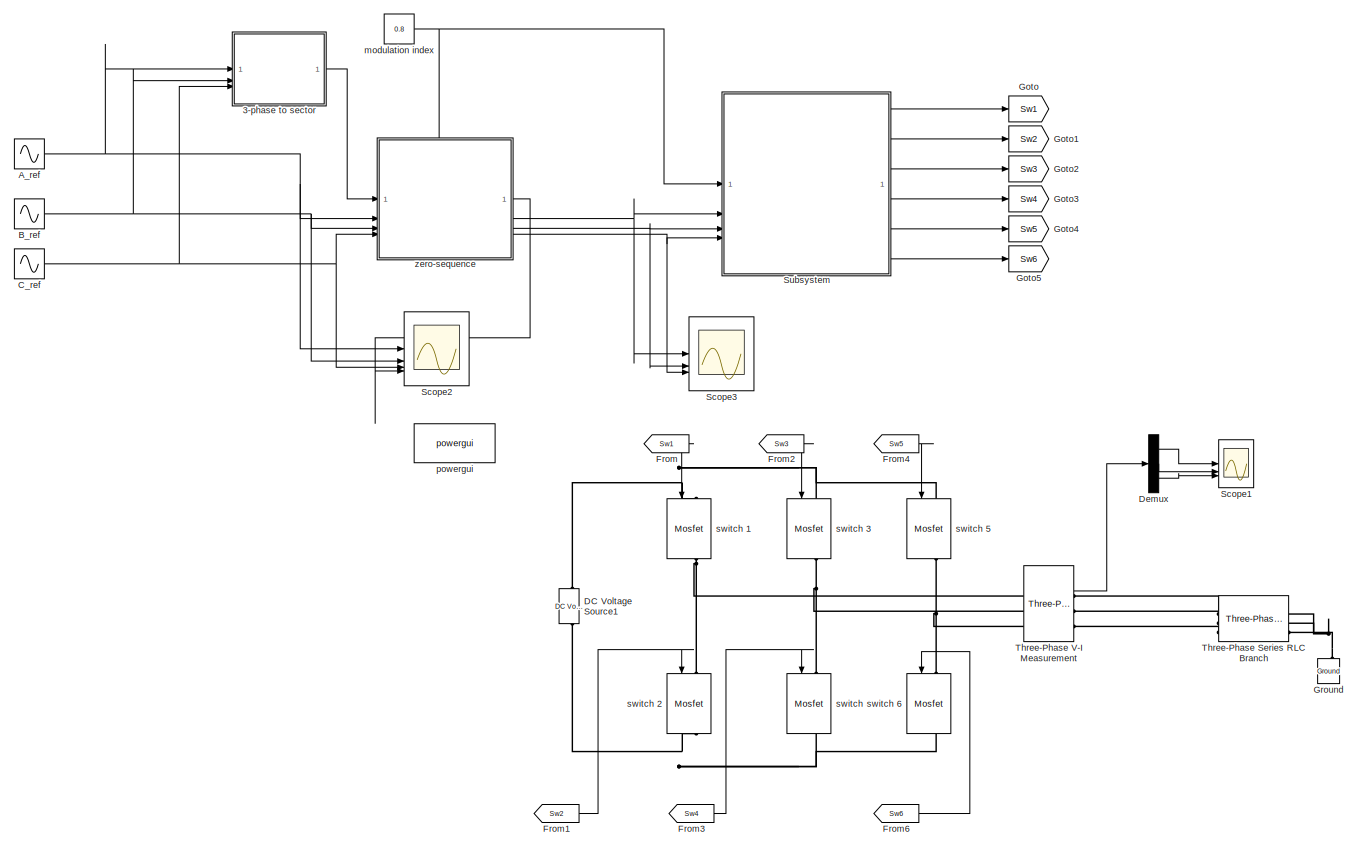
[diagram: root canvas - part 1/1, most of the canvas]
MODEL slx_2ad8d9f9e741
KIND model
CONFIG AbsTol = auto
CONFIG EnableMultiTasking = off
CONFIG FixedStep = auto
CONFIG MaxStep = 0.0001
CONFIG MinStep = auto
CONFIG RelTol = 1e-3
CONFIG SampleTimeConstraint = Unconstrained
CONFIG SolverName = VariableStepAuto
CONFIG StartTime = 0.0
CONFIG StopTime = 0.2
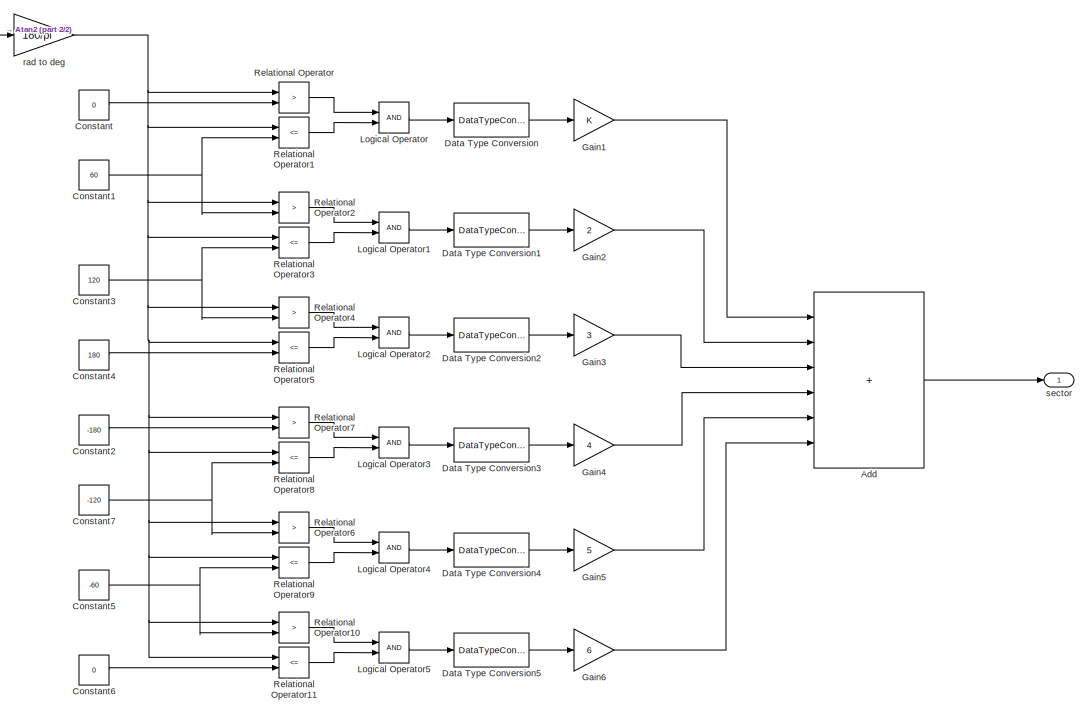
[diagram: 3-phase to sector - part 1/2, right side, full height]
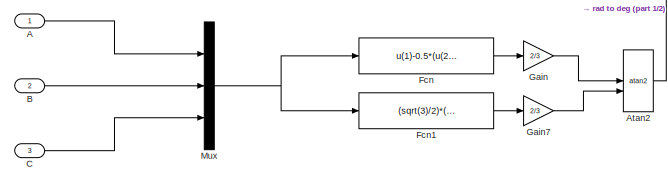
[diagram: 3-phase to sector - part 2/2, middle left region]
BLOCK [SubSystem] 3-phase to sector
BLOCK [Inport] 3-phase to sector/A
BLOCK [Sum] 3-phase to sector/Add
  IconShape = rectangular
  Inputs = ++++++
BLOCK [Trigonometry] 3-phase to sector/Atan2
  Operator = atan2
BLOCK [Inport] 3-phase to sector/B
  Port = 2
BLOCK [Inport] 3-phase to sector/C
  Port = 3
BLOCK [Constant] 3-phase to sector/Constant
  Value = 0
BLOCK [Constant] 3-phase to sector/Constant1
  Value = 60
BLOCK [Constant] 3-phase to sector/Constant2
  Value = -180
BLOCK [Constant] 3-phase to sector/Constant3
  Value = 120
BLOCK [Constant] 3-phase to sector/Constant4
  Value = 180
BLOCK [Constant] 3-phase to sector/Constant5
  Value = -60
BLOCK [Constant] 3-phase to sector/Constant6
  Value = 0
BLOCK [Constant] 3-phase to sector/Constant7
  Value = -120
BLOCK [DataTypeConversion] 3-phase to sector/Data Type Conversion
  RndMeth = Floor
  SaturateOnIntegerOverflow = off
BLOCK [DataTypeConversion] 3-phase to sector/Data Type Conversion1
  RndMeth = Floor
  SaturateOnIntegerOverflow = off
BLOCK [DataTypeConversion] 3-phase to sector/Data Type Conversion2
  RndMeth = Floor
  SaturateOnIntegerOverflow = off
BLOCK [DataTypeConversion] 3-phase to sector/Data Type Conversion3
  RndMeth = Floor
  SaturateOnIntegerOverflow = off
BLOCK [DataTypeConversion] 3-phase to sector/Data Type Conversion4
  RndMeth = Floor
  SaturateOnIntegerOverflow = off
BLOCK [DataTypeConversion] 3-phase to sector/Data Type Conversion5
  RndMeth = Floor
  SaturateOnIntegerOverflow = off
BLOCK [Fcn] 3-phase to sector/Fcn
  Expr = u(1)-0.5*(u(2)+u(3))
BLOCK [Fcn] 3-phase to sector/Fcn1
  Expr = (sqrt(3)/2)*(u(2)-u(3))
BLOCK [Gain] 3-phase to sector/Gain
  Gain = 2/3
BLOCK [Gain] 3-phase to sector/Gain1
BLOCK [Gain] 3-phase to sector/Gain2
  Gain = 2
BLOCK [Gain] 3-phase to sector/Gain3
  Gain = 3
BLOCK [Gain] 3-phase to sector/Gain4
  Gain = 4
BLOCK [Gain] 3-phase to sector/Gain5
  Gain = 5
BLOCK [Gain] 3-phase to sector/Gain6
  Gain = 6
BLOCK [Gain] 3-phase to sector/Gain7
  Gain = 2/3
BLOCK [Logic] 3-phase to sector/Logical Operator
  AllPortsSameDT = off
  OutDataTypeStr = boolean
BLOCK [Logic] 3-phase to sector/Logical Operator1
  AllPortsSameDT = off
  OutDataTypeStr = boolean
BLOCK [Logic] 3-phase to sector/Logical Operator2
  AllPortsSameDT = off
  OutDataTypeStr = boolean
BLOCK [Logic] 3-phase to sector/Logical Operator3
  AllPortsSameDT = off
  OutDataTypeStr = boolean
BLOCK [Logic] 3-phase to sector/Logical Operator4
  AllPortsSameDT = off
  OutDataTypeStr = boolean
BLOCK [Logic] 3-phase to sector/Logical Operator5
  AllPortsSameDT = off
  OutDataTypeStr = boolean
BLOCK [Mux] 3-phase to sector/Mux
  DisplayOption = bar
  Inputs = 3
BLOCK [RelationalOperator] 3-phase to sector/Relational Operator
  InputSameDT = off
  Operator = >
  OutDataTypeStr = boolean
  RndMeth = Simplest
BLOCK [RelationalOperator] 3-phase to sector/Relational Operator1
  InputSameDT = off
  Operator = <=
  OutDataTypeStr = boolean
  RndMeth = Simplest
BLOCK [RelationalOperator] 3-phase to sector/Relational Operator10
  InputSameDT = off
  Operator = >
  OutDataTypeStr = boolean
  RndMeth = Simplest
BLOCK [RelationalOperator] 3-phase to sector/Relational Operator11
  InputSameDT = off
  Operator = <=
  OutDataTypeStr = boolean
  RndMeth = Simplest
BLOCK [RelationalOperator] 3-phase to sector/Relational Operator2
  InputSameDT = off
  Operator = >
  OutDataTypeStr = boolean
  RndMeth = Simplest
BLOCK [RelationalOperator] 3-phase to sector/Relational Operator3
  InputSameDT = off
  Operator = <=
  OutDataTypeStr = boolean
  RndMeth = Simplest
BLOCK [RelationalOperator] 3-phase to sector/Relational Operator4
  InputSameDT = off
  Operator = >
  OutDataTypeStr = boolean
  RndMeth = Simplest
BLOCK [RelationalOperator] 3-phase to sector/Relational Operator5
  InputSameDT = off
  Operator = <=
  OutDataTypeStr = boolean
  RndMeth = Simplest
BLOCK [RelationalOperator] 3-phase to sector/Relational Operator6
  InputSameDT = off
  Operator = >
  OutDataTypeStr = boolean
  RndMeth = Simplest
BLOCK [RelationalOperator] 3-phase to sector/Relational Operator7
  InputSameDT = off
  Operator = >
  OutDataTypeStr = boolean
  RndMeth = Simplest
BLOCK [RelationalOperator] 3-phase to sector/Relational Operator8
  InputSameDT = off
  Operator = <=
  OutDataTypeStr = boolean
  RndMeth = Simplest
BLOCK [RelationalOperator] 3-phase to sector/Relational Operator9
  InputSameDT = off
  Operator = <=
  OutDataTypeStr = boolean
  RndMeth = Simplest
BLOCK [Gain] 3-phase to sector/rad to deg
  Gain = 180/pi
BLOCK [Outport] 3-phase to sector/sector
BLOCK [Sin] A_ref
  Frequency = 2*pi*50
  SampleTime = 0
BLOCK [Sin] B_ref
  Frequency = 2*pi*50
  Phase = 2*pi/3
  SampleTime = 0
BLOCK [Sin] C_ref
  Frequency = 2*pi*50
  Phase = 4*pi/3
  SampleTime = 0
BLOCK [Reference] DC Voltage Source1  REF=spsDCVoltageSourceLib/DC Voltage Source
  LibrarySourceBlock = sps_lib/Sources/DC Voltage Source
  SourceBlock = spsDCVoltageSourceLib/DC Voltage Source
  SourceType = DC Voltage Source
BLOCK [Demux] Demux
  Outputs = 3
BLOCK [From] From
  GotoTag = Sw1
BLOCK [From] From1
  GotoTag = Sw2
BLOCK [From] From2
  GotoTag = Sw3
BLOCK [From] From3
  GotoTag = Sw4
BLOCK [From] From4
  GotoTag = Sw5
BLOCK [From] From6
  GotoTag = Sw6
BLOCK [Goto] Goto
  GotoTag = Sw1
BLOCK [Goto] Goto1
  GotoTag = Sw2
BLOCK [Goto] Goto2
  GotoTag = Sw3
BLOCK [Goto] Goto3
  GotoTag = Sw4
BLOCK [Goto] Goto4
  GotoTag = Sw5
BLOCK [Goto] Goto5
  GotoTag = Sw6
BLOCK [Reference] Ground  REF=spsGroundLib/Ground
  LibrarySourceBlock = sps_lib/Utilities/Ground
  NameLocation = right
  SourceBlock = spsGroundLib/Ground
  SourceType = Ground
BLOCK [Scope] Scope1
  Floating = off
  NumInputPorts = 3
  ScopeSpecificationString = Simulink.scopes.TimeScopeBlockCfg('CurrentConfiguration', extmgr.ConfigurationSet(extmgr.Configuration('Core','General UI',true),extmgr.Configuration('Core','Source UI',true),extmgr.Configuration('Sources','WiredSimulink',true,'DataLoggingVariableName','ScopeData2'),extmgr.Configuration('Visuals','Time Domain',true,'SerializedDisplays',{struct('MinYLimReal','-66.5149','MaxYLimReal','68.61694','YLa...<+1508ch>
BLOCK [Scope] Scope2
  Floating = off
  NumInputPorts = 4
  ScopeSpecificationString = Simulink.scopes.TimeScopeBlockCfg('CurrentConfiguration', extmgr.ConfigurationSet(extmgr.Configuration('Core','General UI',true),extmgr.Configuration('Core','Source UI',true),extmgr.Configuration('Sources','WiredSimulink',true,'DataLoggingVariableName','ScopeData1'),extmgr.Configuration('Visuals','Time Domain',true,'SerializedDisplays',{struct('MinYLimReal','-1.875','MaxYLimReal','6.875','YLabelRe...<+1577ch>
BLOCK [Scope] Scope3
  Floating = off
  NumInputPorts = 3
  ScopeSpecificationString = Simulink.scopes.TimeScopeBlockCfg('CurrentConfiguration', extmgr.ConfigurationSet(extmgr.Configuration('Core','General UI',true),extmgr.Configuration('Core','Source UI',true),extmgr.Configuration('Sources','WiredSimulink',true,'DataLoggingVariableName','ScopeData2'),extmgr.Configuration('Visuals','Time Domain',true,'SerializedDisplays',{struct('MinYLimReal','-2.11603','MaxYLimReal','2.11603','YLab...<+1601ch>
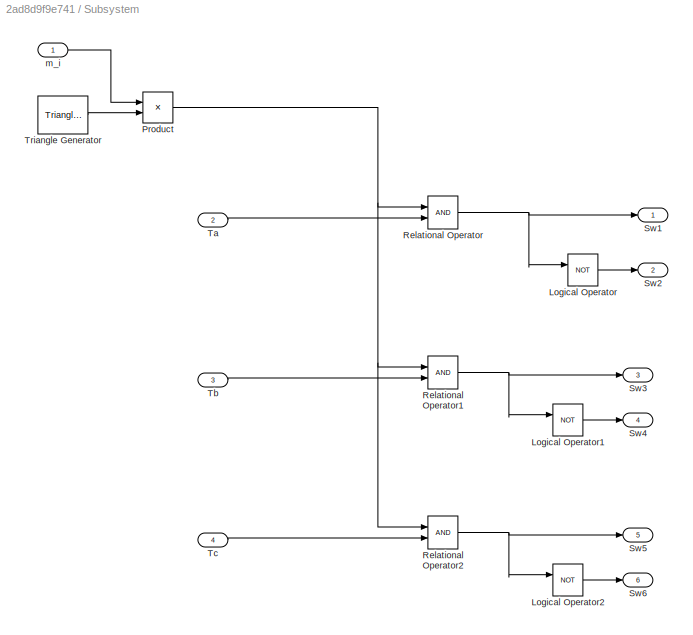
BLOCK [SubSystem] Subsystem
BLOCK [Logic] Subsystem/Logical Operator
  AllPortsSameDT = off
  Operator = NOT
  OutDataTypeStr = boolean
BLOCK [Logic] Subsystem/Logical Operator1
  AllPortsSameDT = off
  Operator = NOT
  OutDataTypeStr = boolean
BLOCK [Logic] Subsystem/Logical Operator2
  AllPortsSameDT = off
  Operator = NOT
  OutDataTypeStr = boolean
BLOCK [Product] Subsystem/Product
BLOCK [RelationalOperator] Subsystem/Relational Operator
  InputSameDT = off
  OutDataTypeStr = boolean
  RndMeth = Simplest
BLOCK [RelationalOperator] Subsystem/Relational Operator1
  InputSameDT = off
  OutDataTypeStr = boolean
  RndMeth = Simplest
BLOCK [RelationalOperator] Subsystem/Relational Operator2
  InputSameDT = off
  OutDataTypeStr = boolean
  RndMeth = Simplest
BLOCK [Outport] Subsystem/Sw1
BLOCK [Outport] Subsystem/Sw2
  Port = 2
BLOCK [Outport] Subsystem/Sw3
  Port = 3
BLOCK [Outport] Subsystem/Sw4
  Port = 4
BLOCK [Outport] Subsystem/Sw5
  Port = 5
BLOCK [Outport] Subsystem/Sw6
  Port = 6
BLOCK [Inport] Subsystem/Ta
  Port = 2
BLOCK [Inport] Subsystem/Tb
  Port = 3
BLOCK [Inport] Subsystem/Tc
  Port = 4
BLOCK [Reference] Subsystem/Triangle Generator  REF=spsTriangleGeneratorLib/Triangle
Generator
  LibrarySourceBlock = sps_lib/Sources/Signal Generator Sources/Triangle\nGenerator
  SourceBlock = spsTriangleGeneratorLib/Triangle\nGenerator
  SourceType = Triangle Generator
BLOCK [Inport] Subsystem/m_i
BLOCK [Reference] Three-Phase Series RLC Branch  REF=spsThreePhaseSeriesRLCBranchLib/Three-Phase
Series RLC Branch
  AttributesFormatString = \n
  LibrarySourceBlock = sps_lib/Passives/Three-Phase\nSeries RLC Branch
  SourceBlock = spsThreePhaseSeriesRLCBranchLib/Three-Phase\nSeries RLC Branch
  SourceType = Three-Phase Series RLC Branch
BLOCK [Reference] Three-Phase V-I Measurement  REF=spsThreePhaseVIMeasurementLib/Three-Phase
V-I Measurement
  LibrarySourceBlock = sps_lib/Sensors and Measurements/Three-Phase\nV-I Measurement
  SourceBlock = spsThreePhaseVIMeasurementLib/Three-Phase\nV-I Measurement
  SourceType = Three-Phase VI Measurement
BLOCK [Constant] modulation index
  Value = 0.8
BLOCK [Reference] powergui  REF=spspowerguiLib/powergui
  LibrarySourceBlock = sps_lib/powergui
  Priority = 1
  SourceBlock = spspowerguiLib/powergui
  SourceType = PSB option menu block
BLOCK [Reference] switch 1  REF=spsMosfetLib/Mosfet
  LibrarySourceBlock = sps_lib/Power Electronics/Mosfet
  NameLocation = left
  SourceBlock = spsMosfetLib/Mosfet
  SourceType = Mosfet
BLOCK [Reference] switch 2  REF=spsMosfetLib/Mosfet
  LibrarySourceBlock = sps_lib/Power Electronics/Mosfet
  NameLocation = left
  SourceBlock = spsMosfetLib/Mosfet
  SourceType = Mosfet
BLOCK [Reference] switch 3  REF=spsMosfetLib/Mosfet
  LibrarySourceBlock = sps_lib/Power Electronics/Mosfet
  NameLocation = left
  SourceBlock = spsMosfetLib/Mosfet
  SourceType = Mosfet
BLOCK [Reference] switch 4  REF=spsMosfetLib/Mosfet
  LibrarySourceBlock = sps_lib/Power Electronics/Mosfet
  NameLocation = left
  SourceBlock = spsMosfetLib/Mosfet
  SourceType = Mosfet
BLOCK [Reference] switch 5  REF=spsMosfetLib/Mosfet
  LibrarySourceBlock = sps_lib/Power Electronics/Mosfet
  NameLocation = left
  SourceBlock = spsMosfetLib/Mosfet
  SourceType = Mosfet
BLOCK [Reference] switch 6  REF=spsMosfetLib/Mosfet
  LibrarySourceBlock = sps_lib/Power Electronics/Mosfet
  NameLocation = left
  SourceBlock = spsMosfetLib/Mosfet
  SourceType = Mosfet
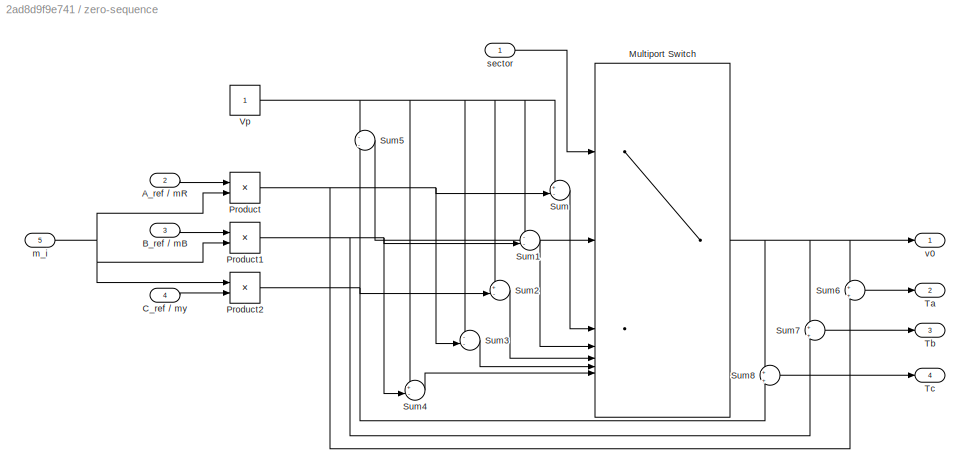
BLOCK [SubSystem] zero-sequence
  PortSchema = {"entries":[{"content":{"sides":[{"content":{"connectorIds":["In1","In2","In3","In4"]},"type":"ConnectorPlacement.EquallySpacedRectSide","uuid":"54674ff0-eaad-4175-8630-88aa50651ea8"},{"content":{"connectorIds":["Out1","Out2","Out3","Out4"],"side":"RIGHT"},"type":"ConnectorPlacement.EquallySpacedRectSide","uuid":"ebc9f3d9-ae9e-4e4a-bc7f-ec011c2599d1"},{"content":{"connectorIds":["In5"],"side":"TOP...<+284ch>
BLOCK [Inport] zero-sequence/A_ref // mR
  Port = 2
BLOCK [Inport] zero-sequence/B_ref // mB
  Port = 3
BLOCK [Inport] zero-sequence/C_ref // my
  Port = 4
BLOCK [MultiPortSwitch] zero-sequence/Multiport Switch
  InputSameDT = off
  Inputs = 6
  SaturateOnIntegerOverflow = off
BLOCK [Product] zero-sequence/Product
BLOCK [Product] zero-sequence/Product1
BLOCK [Product] zero-sequence/Product2
BLOCK [Sum] zero-sequence/Sum
  Inputs = +-|
BLOCK [Sum] zero-sequence/Sum1
  Inputs = --|
BLOCK [Sum] zero-sequence/Sum2
  Inputs = +-|
BLOCK [Sum] zero-sequence/Sum3
  Inputs = --|
BLOCK [Sum] zero-sequence/Sum4
  Inputs = +-|
BLOCK [Sum] zero-sequence/Sum5
  Inputs = -|-
BLOCK [Sum] zero-sequence/Sum6
  Inputs = +|+
BLOCK [Sum] zero-sequence/Sum7
  Inputs = +|+
BLOCK [Sum] zero-sequence/Sum8
  Inputs = +|+
BLOCK [Outport] zero-sequence/Ta
  Port = 2
BLOCK [Outport] zero-sequence/Tb
  Port = 3
BLOCK [Outport] zero-sequence/Tc
  Port = 4
BLOCK [Constant] zero-sequence/Vp
BLOCK [Inport] zero-sequence/m_i
  Port = 5
BLOCK [Inport] zero-sequence/sector
BLOCK [Outport] zero-sequence/v0
LINE 3-phase to sector/A:1 -> 3-phase to sector/Mux:1
LINE 3-phase to sector/Add:1 -> 3-phase to sector/sector:1
LINE 3-phase to sector/Atan2:1 -> 3-phase to sector/rad to deg:1
LINE 3-phase to sector/B:1 -> 3-phase to sector/Mux:2
LINE 3-phase to sector/C:1 -> 3-phase to sector/Mux:3
NET 3-phase to sector/Constant1:1 -> 3-phase to sector/Relational Operator1:2, 3-phase to sector/Relational Operator2:2
LINE 3-phase to sector/Constant2:1 -> 3-phase to sector/Relational Operator7:2
NET 3-phase to sector/Constant3:1 -> 3-phase to sector/Relational Operator3:2, 3-phase to sector/Relational Operator4:2
LINE 3-phase to sector/Constant4:1 -> 3-phase to sector/Relational Operator5:2
NET 3-phase to sector/Constant5:1 -> 3-phase to sector/Relational Operator10:2, 3-phase to sector/Relational Operator9:2
LINE 3-phase to sector/Constant6:1 -> 3-phase to sector/Relational Operator11:2
NET 3-phase to sector/Constant7:1 -> 3-phase to sector/Relational Operator6:2, 3-phase to sector/Relational Operator8:2
LINE 3-phase to sector/Constant:1 -> 3-phase to sector/Relational Operator:2
LINE 3-phase to sector/Data Type Conversion1:1 -> 3-phase to sector/Gain2:1
LINE 3-phase to sector/Data Type Conversion2:1 -> 3-phase to sector/Gain3:1
LINE 3-phase to sector/Data Type Conversion3:1 -> 3-phase to sector/Gain4:1
LINE 3-phase to sector/Data Type Conversion4:1 -> 3-phase to sector/Gain5:1
LINE 3-phase to sector/Data Type Conversion5:1 -> 3-phase to sector/Gain6:1
LINE 3-phase to sector/Data Type Conversion:1 -> 3-phase to sector/Gain1:1
LINE 3-phase to sector/Fcn1:1 -> 3-phase to sector/Gain7:1
LINE 3-phase to sector/Fcn:1 -> 3-phase to sector/Gain:1
LINE 3-phase to sector/Gain1:1 -> 3-phase to sector/Add:1
LINE 3-phase to sector/Gain2:1 -> 3-phase to sector/Add:2
LINE 3-phase to sector/Gain3:1 -> 3-phase to sector/Add:3
LINE 3-phase to sector/Gain4:1 -> 3-phase to sector/Add:4
LINE 3-phase to sector/Gain5:1 -> 3-phase to sector/Add:5
LINE 3-phase to sector/Gain6:1 -> 3-phase to sector/Add:6
LINE 3-phase to sector/Gain7:1 -> 3-phase to sector/Atan2:2
LINE 3-phase to sector/Gain:1 -> 3-phase to sector/Atan2:1
LINE 3-phase to sector/Logical Operator1:1 -> 3-phase to sector/Data Type Conversion1:1
LINE 3-phase to sector/Logical Operator2:1 -> 3-phase to sector/Data Type Conversion2:1
LINE 3-phase to sector/Logical Operator3:1 -> 3-phase to sector/Data Type Conversion3:1
LINE 3-phase to sector/Logical Operator4:1 -> 3-phase to sector/Data Type Conversion4:1
LINE 3-phase to sector/Logical Operator5:1 -> 3-phase to sector/Data Type Conversion5:1
LINE 3-phase to sector/Logical Operator:1 -> 3-phase to sector/Data Type Conversion:1
NET 3-phase to sector/Mux:1 -> 3-phase to sector/Fcn1:1, 3-phase to sector/Fcn:1
LINE 3-phase to sector/Relational Operator10:1 -> 3-phase to sector/Logical Operator5:1
LINE 3-phase to sector/Relational Operator11:1 -> 3-phase to sector/Logical Operator5:2
LINE 3-phase to sector/Relational Operator1:1 -> 3-phase to sector/Logical Operator:2
LINE 3-phase to sector/Relational Operator2:1 -> 3-phase to sector/Logical Operator1:1
LINE 3-phase to sector/Relational Operator3:1 -> 3-phase to sector/Logical Operator1:2
LINE 3-phase to sector/Relational Operator4:1 -> 3-phase to sector/Logical Operator2:1
LINE 3-phase to sector/Relational Operator5:1 -> 3-phase to sector/Logical Operator2:2
LINE 3-phase to sector/Relational Operator6:1 -> 3-phase to sector/Logical Operator4:1
LINE 3-phase to sector/Relational Operator7:1 -> 3-phase to sector/Logical Operator3:1
LINE 3-phase to sector/Relational Operator8:1 -> 3-phase to sector/Logical Operator3:2
LINE 3-phase to sector/Relational Operator9:1 -> 3-phase to sector/Logical Operator4:2
LINE 3-phase to sector/Relational Operator:1 -> 3-phase to sector/Logical Operator:1
NET 3-phase to sector/rad to deg:1 -> 3-phase to sector/Relational Operator10:1, 3-phase to sector/Relational Operator11:1, 3-phase to sector/Relational Operator1:1, 3-phase to sector/Relational Operator2:1, 3-phase to sector/Relational Operator3:1, 3-phase to sector/Relational Operator4:1, 3-phase to sector/Relational Operator5:1, 3-phase to sector/Relational Operator6:1, 3-phase to sector/Relational Operator7:1, 3-phase to sector/Relational Operator8:1, 3-phase to sector/Relational Operator9:1, 3-phase to sector/Relational Operator:1
LINE 3-phase to sector:1 -> zero-sequence:1
NET A_ref:1 -> 3-phase to sector:1, Scope2:1, zero-sequence:2
NET B_ref:1 -> 3-phase to sector:2, Scope2:2, zero-sequence:3
NET C_ref:1 -> 3-phase to sector:3, Scope2:3, zero-sequence:4
LINE Demux:1 -> Scope1:1
LINE Demux:2 -> Scope1:2
LINE Demux:3 -> Scope1:3
LINE From1:1 -> switch 2:1
LINE From2:1 -> switch 3:1
LINE From3:1 -> switch 4:1
LINE From4:1 -> switch 5:1
LINE From6:1 -> switch 6:1
LINE From:1 -> switch 1:1
LINE Subsystem/Logical Operator1:1 -> Subsystem/Sw4:1
LINE Subsystem/Logical Operator2:1 -> Subsystem/Sw6:1
LINE Subsystem/Logical Operator:1 -> Subsystem/Sw2:1
NET Subsystem/Product:1 -> Subsystem/Relational Operator1:1, Subsystem/Relational Operator2:1, Subsystem/Relational Operator:1
NET Subsystem/Relational Operator1:1 -> Subsystem/Logical Operator1:1, Subsystem/Sw3:1
NET Subsystem/Relational Operator2:1 -> Subsystem/Logical Operator2:1, Subsystem/Sw5:1
NET Subsystem/Relational Operator:1 -> Subsystem/Logical Operator:1, Subsystem/Sw1:1
LINE Subsystem/Ta:1 -> Subsystem/Relational Operator:2
LINE Subsystem/Tb:1 -> Subsystem/Relational Operator1:2
LINE Subsystem/Tc:1 -> Subsystem/Relational Operator2:2
LINE Subsystem/Triangle Generator:1 -> Subsystem/Product:2
LINE Subsystem/m_i:1 -> Subsystem/Product:1
LINE Subsystem:1 -> Goto:1
LINE Subsystem:2 -> Goto1:1
LINE Subsystem:3 -> Goto2:1
LINE Subsystem:4 -> Goto3:1
LINE Subsystem:5 -> Goto4:1
LINE Subsystem:6 -> Goto5:1
LINE Three-Phase V-I Measurement:2 -> Demux:1
NET modulation index:1 -> Subsystem:1, zero-sequence:5
LINE zero-sequence/A_ref // mR:1 -> zero-sequence/Product:1
LINE zero-sequence/B_ref // mB:1 -> zero-sequence/Product1:1
LINE zero-sequence/C_ref // my:1 -> zero-sequence/Product2:2
NET zero-sequence/Multiport Switch:1 -> zero-sequence/Sum6:1, zero-sequence/Sum7:1, zero-sequence/Sum8:1, zero-sequence/v0:1
NET zero-sequence/Product1:1 -> zero-sequence/Sum1:2, zero-sequence/Sum4:2, zero-sequence/Sum7:2
NET zero-sequence/Product2:1 -> zero-sequence/Sum2:2, zero-sequence/Sum5:2, zero-sequence/Sum8:2
NET zero-sequence/Product:1 -> zero-sequence/Sum3:2, zero-sequence/Sum6:2, zero-sequence/Sum:2
LINE zero-sequence/Sum1:1 -> zero-sequence/Multiport Switch:4
LINE zero-sequence/Sum2:1 -> zero-sequence/Multiport Switch:5
LINE zero-sequence/Sum3:1 -> zero-sequence/Multiport Switch:6
LINE zero-sequence/Sum4:1 -> zero-sequence/Multiport Switch:7
LINE zero-sequence/Sum5:1 -> zero-sequence/Multiport Switch:2
LINE zero-sequence/Sum6:1 -> zero-sequence/Ta:1
LINE zero-sequence/Sum7:1 -> zero-sequence/Tb:1
LINE zero-sequence/Sum8:1 -> zero-sequence/Tc:1
LINE zero-sequence/Sum:1 -> zero-sequence/Multiport Switch:3
NET zero-sequence/Vp:1 -> zero-sequence/Sum1:1, zero-sequence/Sum2:1, zero-sequence/Sum3:1, zero-sequence/Sum4:1, zero-sequence/Sum5:1, zero-sequence/Sum:1
NET zero-sequence/m_i:1 -> zero-sequence/Product1:2, zero-sequence/Product2:1, zero-sequence/Product:2
LINE zero-sequence/sector:1 -> zero-sequence/Multiport Switch:1
LINE zero-sequence:1 -> Scope2:4
NET zero-sequence:2 -> Scope3:1, Subsystem:2
NET zero-sequence:3 -> Scope3:2, Subsystem:3
NET zero-sequence:4 -> Scope3:3, Subsystem:4
PNET net1: DC Voltage Source1:LConn1 -- switch 2:RConn1 -- switch 4:RConn1 -- switch 6:RConn1
PNET net2: DC Voltage Source1:RConn1 -- switch 1:LConn1 -- switch 3:LConn1 -- switch 5:LConn1
PNET net3: Ground:LConn1 -- Three-Phase Series RLC Branch:RConn1 -- Three-Phase Series RLC Branch:RConn2 -- Three-Phase Series RLC Branch:RConn3
PLINE Three-Phase Series RLC Branch:LConn1 -- Three-Phase V-I Measurement:RConn1
PLINE Three-Phase Series RLC Branch:LConn2 -- Three-Phase V-I Measurement:RConn2
PLINE Three-Phase Series RLC Branch:LConn3 -- Three-Phase V-I Measurement:RConn3
PNET net4: Three-Phase V-I Measurement:LConn1 -- switch 1:RConn1 -- switch 2:LConn1
PNET net5: Three-Phase V-I Measurement:LConn2 -- switch 3:RConn1 -- switch 4:LConn1
PNET net6: Three-Phase V-I Measurement:LConn3 -- switch 5:RConn1 -- switch 6:LConn1
note: NET lines group one-source signal fan-out (src -> all destinations, sorted); 1:1 wires keep LINE; PNET lines group multi-terminal physical nets as a canonical sorted terminal list (undirected conserving connections); 2-terminal nets keep the pairwise PLINE form
